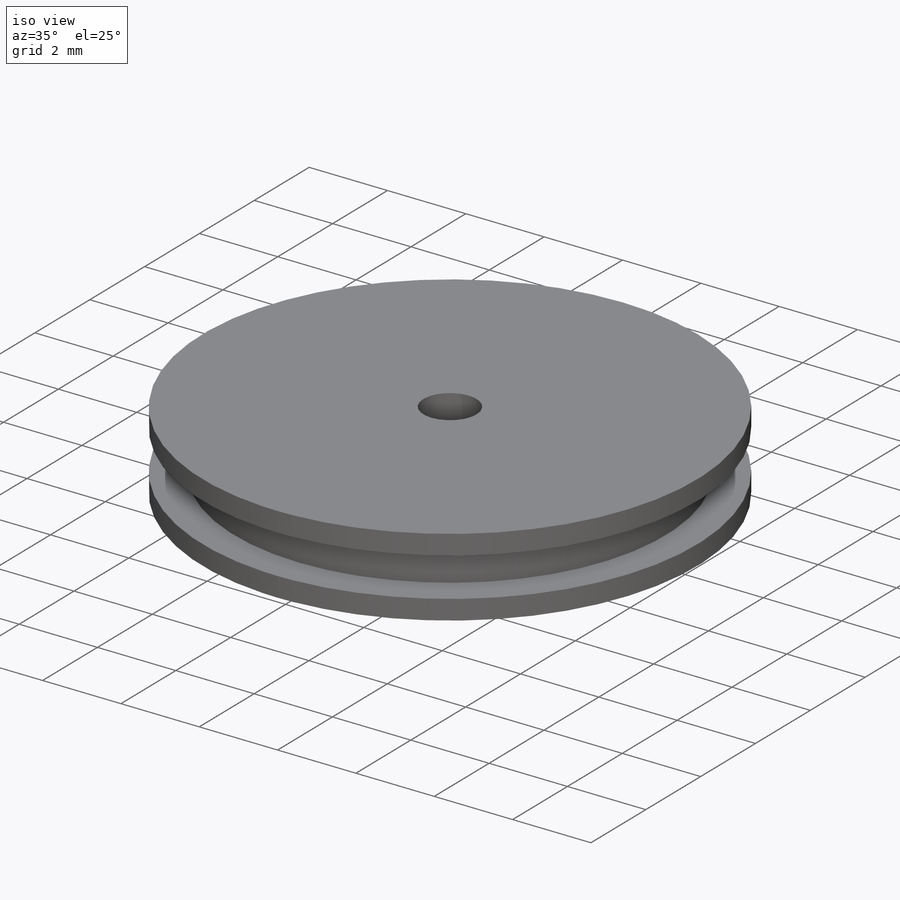
[diagram: iso view]
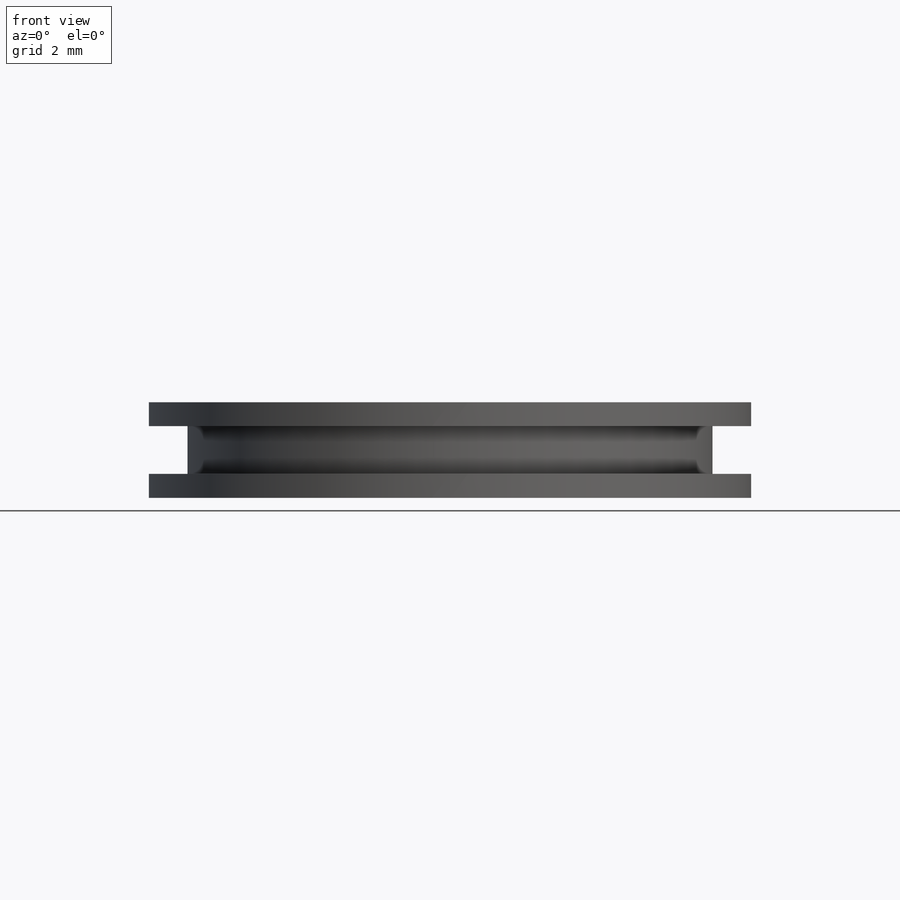
[diagram: front view]
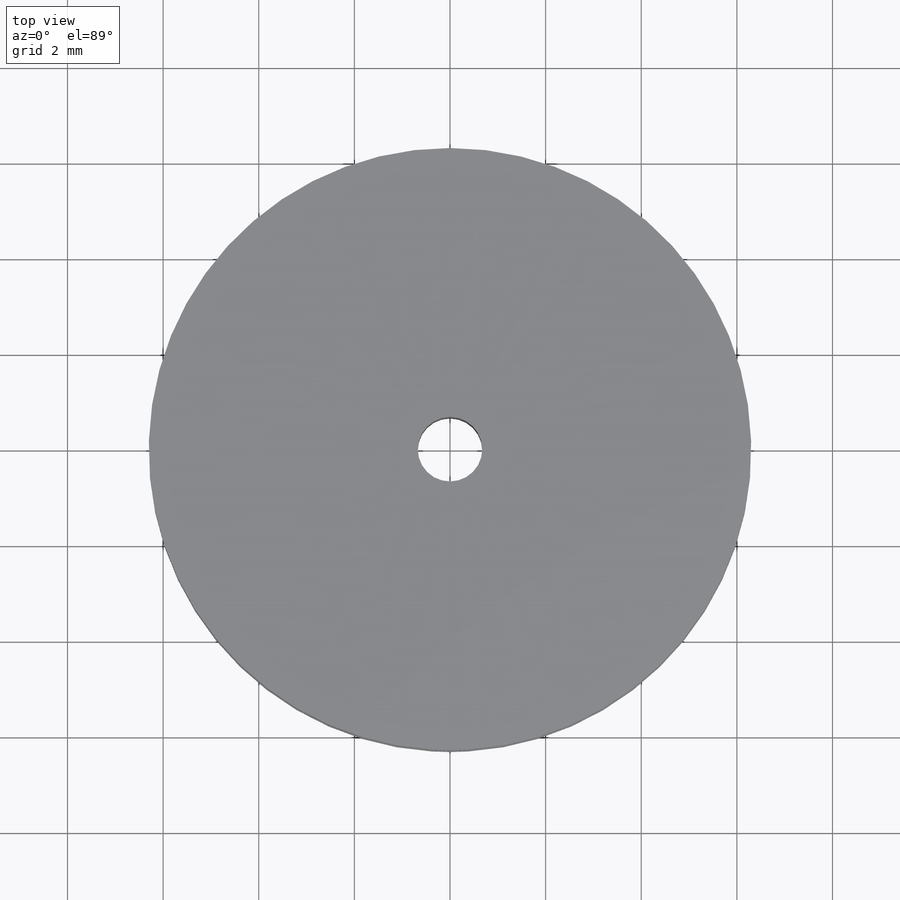
[diagram: top view]
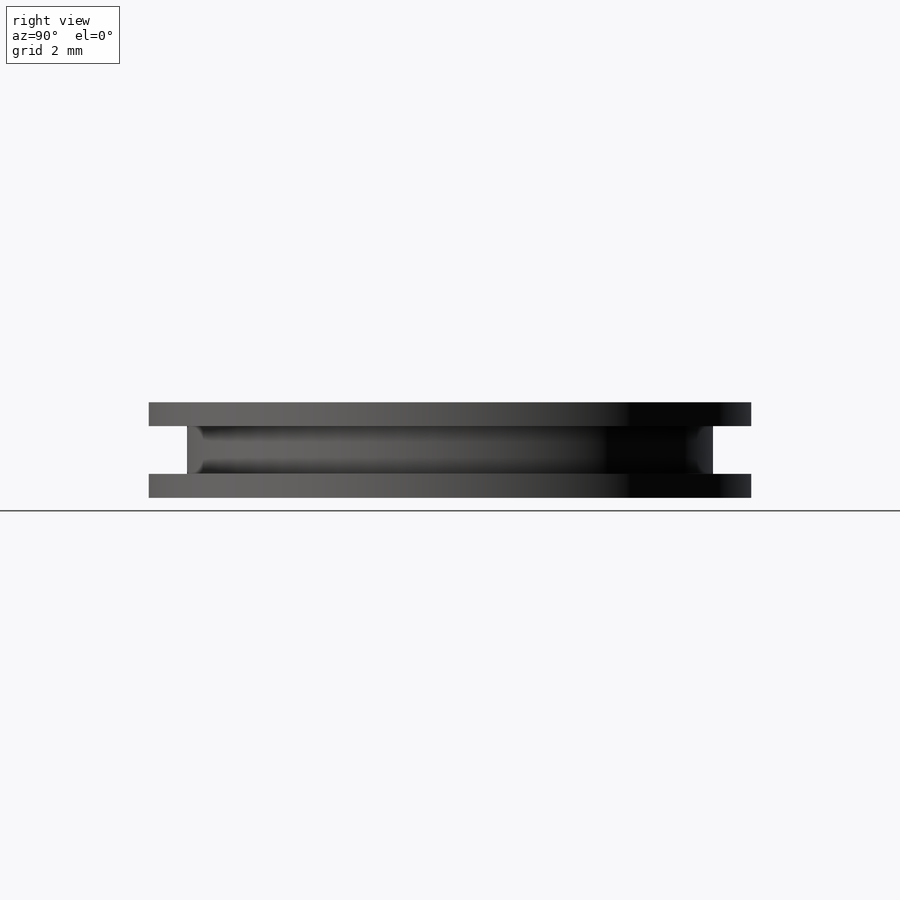
[diagram: right view]
SOLIDWORKS PART (.sldprt)
format: sldprt  version: not decoded by parser v0  size: 159,232 bytes
history: native  units: mm
features: sketch x4, plane x3, extrude x3, material x1, cut_extrude x1 (+9 scaffold rows collapsed)
feature tree (21):
  scaffold x9  (default folders/planes/origin — collapsed)
  material  "Material <não especificado>"
  plane  "Plano frontal"
  plane  "Plano superior"
  plane  "Plano direito"
  sketch  "Esboço1"  dims[D1=12.6mm]
  extrude  "Ressalto-extrusão1"  Depth=0.5mm
  sketch  "Esboço10"  dims[D1=11.0mm]
  extrude  "Ressalto-extrusão4"  Depth=1mm
  sketch  "Esboço11"  dims[D1=12.6mm]
  extrude  "Ressalto-extrusão5"  Depth=0.5mm
  sketch  "Esboço12"  dims[D1=1.35mm]
  cut_extrude  "Corte-extrusão1"  [1 undecoded]
decode coverage: 7 of 8 modeling features carry decoded parameters
note: 1 parameter value undecoded
note: suppression state not decoded; provenance and decode notes live in map.json
